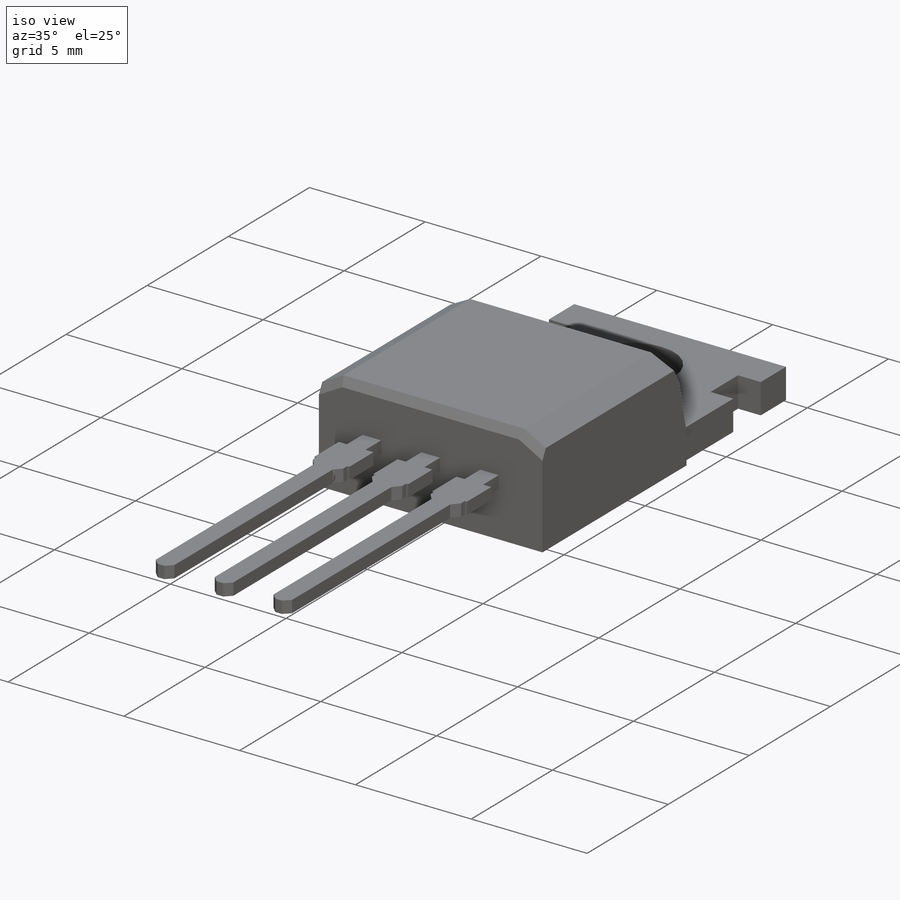
[diagram: iso view]
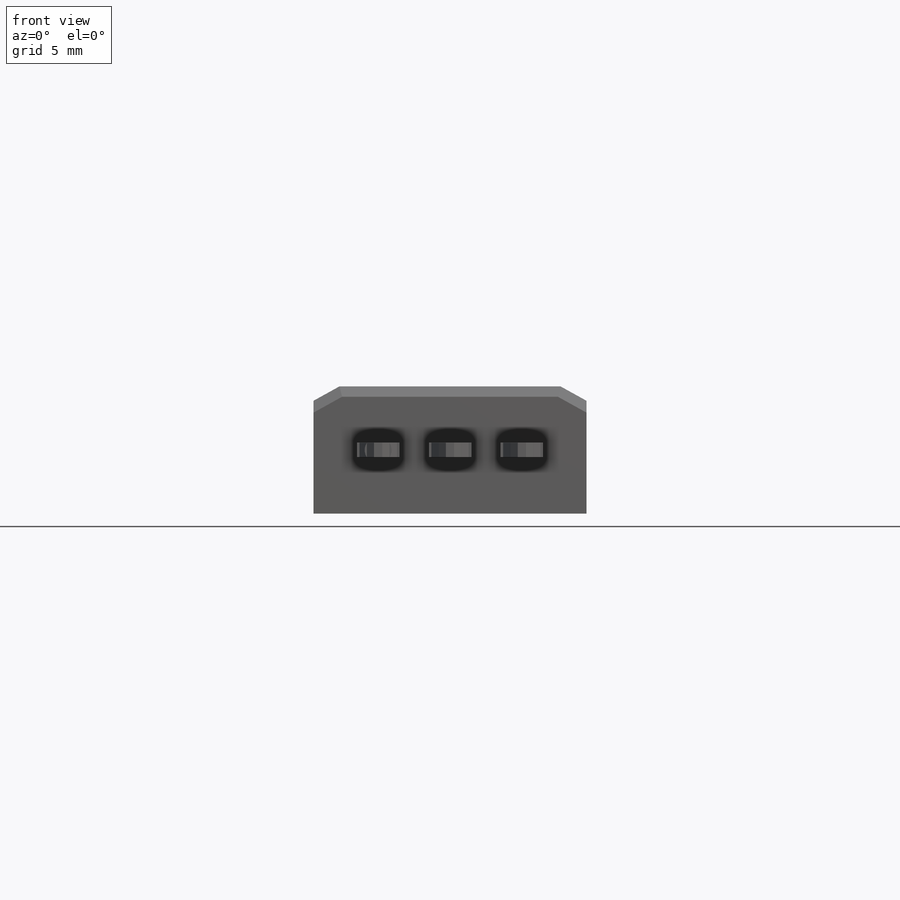
[diagram: front view]
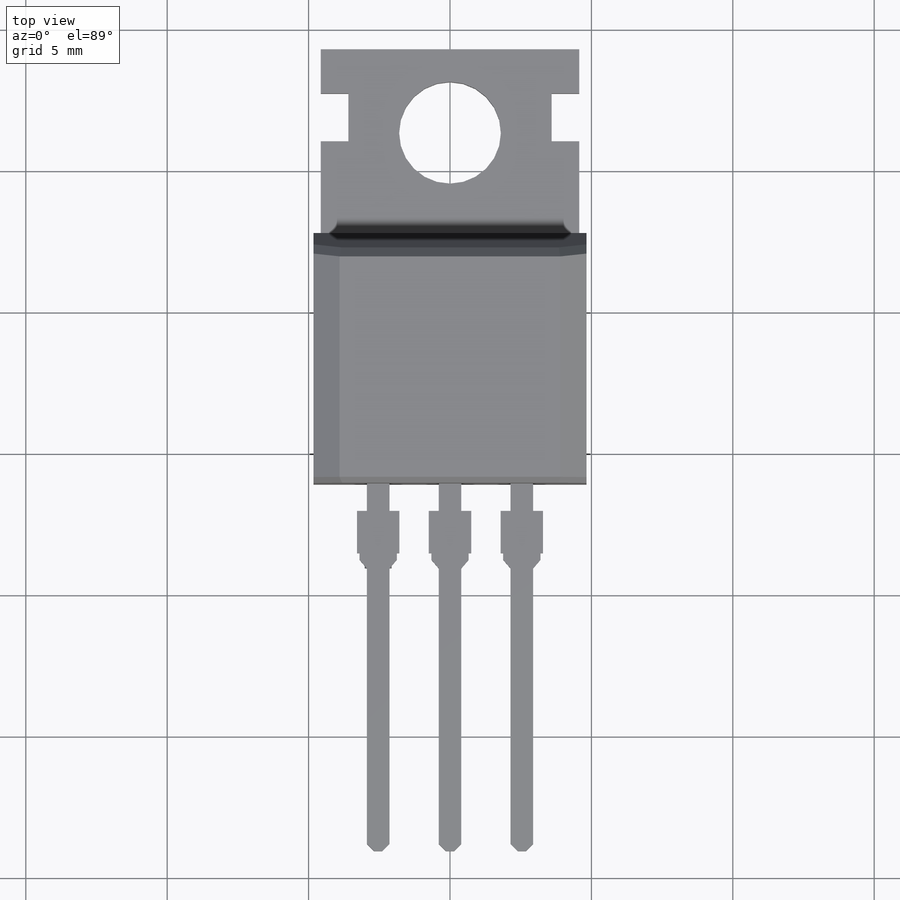
[diagram: top view]
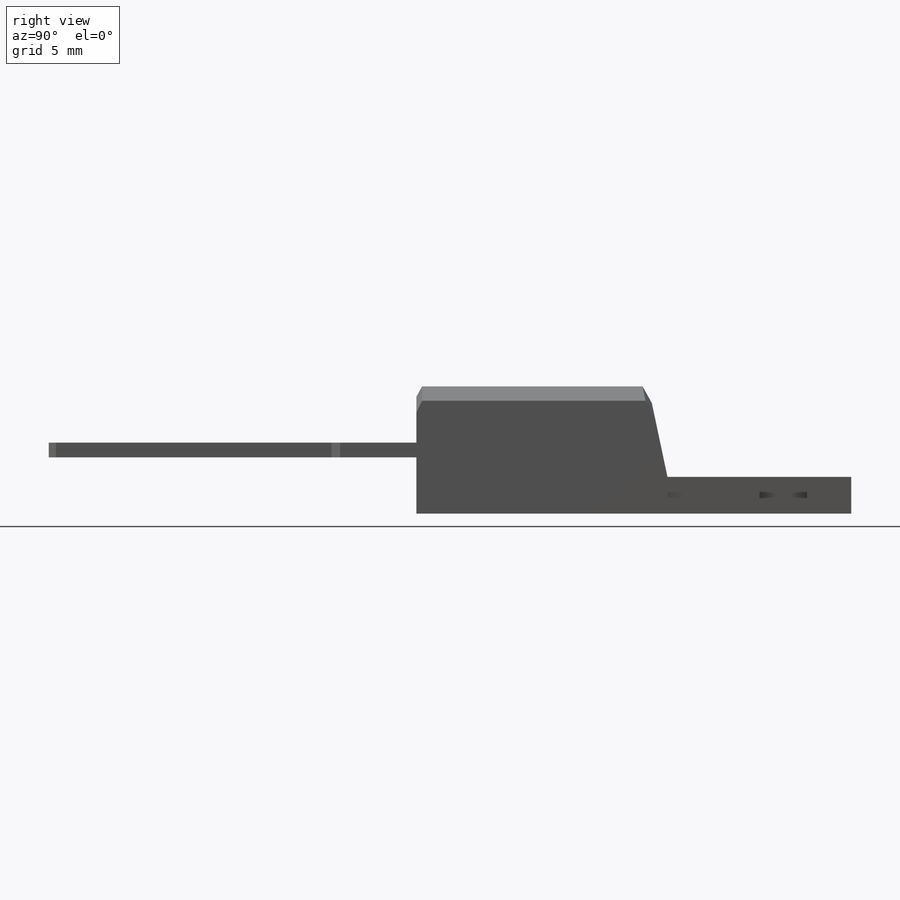
[diagram: right view]
SOLIDWORKS PART (.sldprt)
format: sldprt  version: not decoded by parser v0  size: 532,992 bytes
history: native  units: mm
features: sketch x8, extrude x4, cut_extrude x3, chamfer x3, material x1, plane x1 (+12 scaffold rows collapsed)
feature tree (32):
  scaffold x12  (default folders/planes/origin — collapsed)
  material  "Material <not specified>"
  sketch  "Sketch1"  dims[D1=9.652mm D2=14.605mm D3=8.382mm D4=8.382mm D5=1.6764mm]
  sketch  "Sketch2"  dims[c1.D1=4.064mm c1.D3=8.382mm c1.D4=3.556mm c2.D1=4.5mm c2.D4=0.508mm c2.D2=1.3mm c2.D3=10.0584mm c3.D2=15.38mm c3.D3=6.5mm c4.D2=0.508mm]
  extrude  "Extrude1"  [1 undecoded]
  sketch  "Sketch10"  dims[D1=3.6mm D2=2.95mm]
  cut_extrude  "Extrude5"  [1 undecoded]
  sketch  "Sketch6"  dims[D3=0.8mm D4=0.52mm D5=0.8mm D6=0.8mm D1=2.54mm D2=2.54mm]
  extrude  "Extrude6"  Depth=13mm
  sketch  "Sketch11"  dims[c1.D1=1.5mm c1.D2=3.0mm c1.D3=2.46mm c2.D1=2.032mm c2.D5=1.5mm c2.D6=0.3048mm c2.D4=0.6mm c3.D5=0.6mm]
  extrude  "Extrude7"  [1 undecoded]
  chamfer  "Chamfer1"  Distance=0.254mm Angle=45deg
  sketch  "Sketch12"
  cut_extrude  "Extrude8"  Depth=0.254mm
  sketch  "Sketch13"  dims[D1=0.0mm]
  cut_extrude  "Extrude9"  Depth=0.254mm
  chamfer  "Chamfer2"  Distance=0.508mm Angle=61deg
  chamfer  "Chamfer3"  Distance=0.2032mm Angle=61deg
  plane  "Plane1"
  sketch  "Sketch15"
  extrude  "Extrude10"  Depth=1.016mm
decode coverage: 13 of 18 modeling features carry decoded parameters
note: 3 parameter values undecoded
summary: no parameter record found for 3 features
note: suppression state not decoded; provenance and decode notes live in map.json
